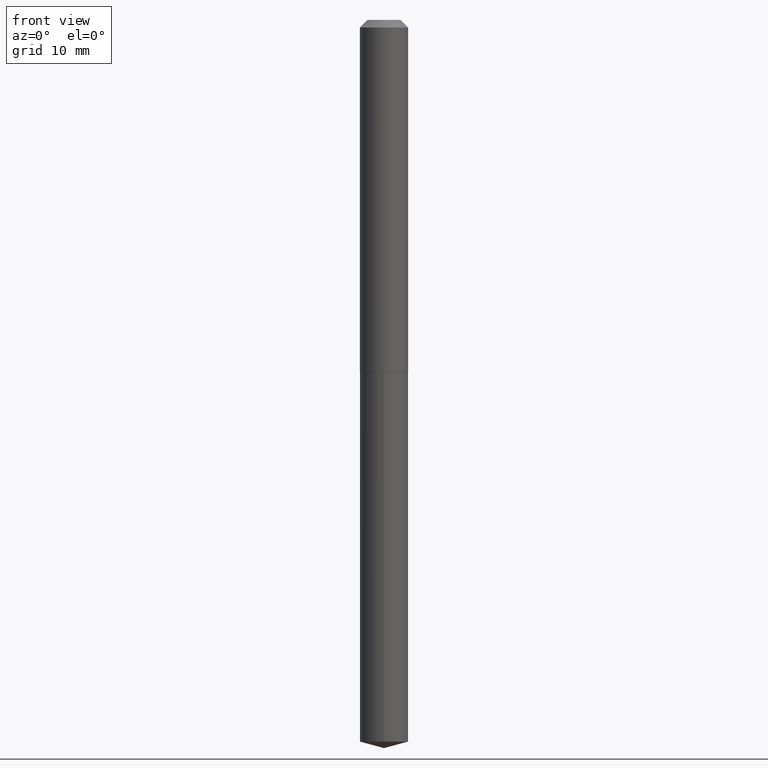
[diagram: clean part render]
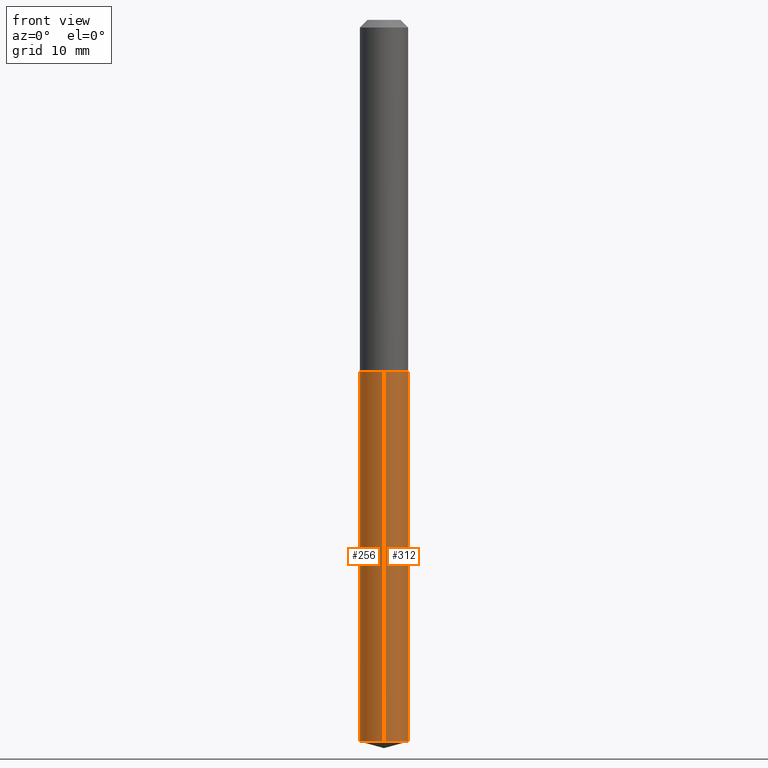
[diagram: same view with one multi-face feature highlighted, each face labeled with its STEP entity id]
A machine part, front view. The highlighted faces form ONE feature: a constant-radius fillet chain: 2 tangent blend faces with common blend radius 2.5273 mm. The faces share edges in the B-rep.
Their STEP definitions:
[1] entity #256 (Cylinder):
#1 = ORIENTED_EDGE ( 'NONE', *, *, #56, .T. ) ;
#2 = VECTOR ( 'NONE', #383, 39.37007874015748143 ) ;
#13 = CARTESIAN_POINT ( 'NONE',  ( 7.252523040957394308E-29, -1.040811562187627569E-14, -2.973339055353103610 ) ) ;
#33 = AXIS2_PLACEMENT_3D ( 'NONE', #13, #42, #377 ) ;
#42 = DIRECTION ( 'NONE',  ( -2.433211120432753705E-29, 3.509035042504704003E-15, 1.000000000000000000 ) ) ;
#44 = CARTESIAN_POINT ( 'NONE',  ( 7.069900220813351214E-16, 0.09949999999999496747, -1.449000000000000510 ) ) ;
#50 = EDGE_CURVE ( 'NONE', #183, #272, #354, .T. ) ;
#54 = DIRECTION ( 'NONE',  ( -6.982962677686266711E-15, -1.000000000000000000, 2.745575873029409572E-15 ) ) ;
#55 = CARTESIAN_POINT ( 'NONE',  ( -6.948047864297481652E-16, -0.09950000000000505662, -1.449000000000000066 ) ) ;
#56 = EDGE_CURVE ( 'NONE', #122, #89, #266, .T. ) ;
#58 = VECTOR ( 'NONE', #249, 39.37007874015748143 ) ;
#89 = VERTEX_POINT ( 'NONE', #226 ) ;
#106 = DIRECTION ( 'NONE',  ( -6.982962677686266711E-15, -1.000000000000000000, 2.745575873029409967E-15 ) ) ;
#108 = CYLINDRICAL_SURFACE ( 'NONE', #261, 0.09950000000000001898 ) ;
#112 = CARTESIAN_POINT ( 'NONE',  ( -6.948047864297482638E-16, -0.09950000000000508438, -1.449000000000000066 ) ) ;
#117 = ORIENTED_EDGE ( 'NONE', *, *, #50, .F. ) ;
#122 = VERTEX_POINT ( 'NONE', #257 ) ;
#150 = CARTESIAN_POINT ( 'NONE',  ( 7.069900220813727895E-16, 0.09949999999999495359, -1.449000000000000510 ) ) ;
#154 = EDGE_LOOP ( 'NONE', ( #297, #1, #240, #117 ) ) ;
#170 = CARTESIAN_POINT ( 'NONE',  ( 3.543484300162263808E-29, -5.059156459983719291E-15, -1.449000000000000288 ) ) ;
#171 = EDGE_CURVE ( 'NONE', #122, #183, #279, .T. ) ;
#176 = FACE_OUTER_BOUND ( 'NONE', #154, .T. ) ;
#183 = VERTEX_POINT ( 'NONE', #150 ) ;
#205 = EDGE_CURVE ( 'NONE', #89, #272, #232, .T. ) ;
#226 = CARTESIAN_POINT ( 'NONE',  ( -6.948047864297114831E-16, -0.09950000000001051059, -2.973339055353103166 ) ) ;
#232 = LINE ( 'NONE', #112, #2 ) ;
#240 = ORIENTED_EDGE ( 'NONE', *, *, #205, .T. ) ;
#249 = DIRECTION ( 'NONE',  ( -2.433211120432753425E-29, 3.509035042504704003E-15, 1.000000000000000000 ) ) ;
#255 = DIRECTION ( 'NONE',  ( -2.433211120432753705E-29, 3.509035042504704003E-15, 1.000000000000000000 ) ) ;
#256 = ADVANCED_FACE ( 'NONE', ( #176 ), #108, .T. ) ;
#257 = CARTESIAN_POINT ( 'NONE',  ( 7.069900220813727895E-16, 0.09949999999998966616, -2.973339055353104055 ) ) ;
#261 = AXIS2_PLACEMENT_3D ( 'NONE', #289, #263, #54 ) ;
#263 = DIRECTION ( 'NONE',  ( -2.433211120432753705E-29, 3.509035042504704003E-15, 1.000000000000000000 ) ) ;
#266 = CIRCLE ( 'NONE', #33, 0.09950000000000004674 ) ;
#272 = VERTEX_POINT ( 'NONE', #55 ) ;
#279 = LINE ( 'NONE', #44, #58 ) ;
#289 = CARTESIAN_POINT ( 'NONE',  ( 3.543484300162263808E-29, -5.059156459983719291E-15, -1.449000000000000288 ) ) ;
#297 = ORIENTED_EDGE ( 'NONE', *, *, #171, .F. ) ;
#307 = AXIS2_PLACEMENT_3D ( 'NONE', #170, #255, #106 ) ;
#354 = CIRCLE ( 'NONE', #307, 0.09950000000000000511 ) ;
#377 = DIRECTION ( 'NONE',  ( -6.982962677686265922E-15, -1.000000000000000000, 5.491151746058817567E-15 ) ) ;
#383 = DIRECTION ( 'NONE',  ( -2.433211120432753425E-29, 3.509035042504704003E-15, 1.000000000000000000 ) ) ;
[2] entity #312 (Cylinder):
#2 = VECTOR ( 'NONE', #383, 39.37007874015748143 ) ;
#19 = DIRECTION ( 'NONE',  ( -2.433211120432753705E-29, 3.509035042504704003E-15, 1.000000000000000000 ) ) ;
#30 = CARTESIAN_POINT ( 'NONE',  ( 3.543484300162263808E-29, -5.059156459983719291E-15, -1.449000000000000288 ) ) ;
#44 = CARTESIAN_POINT ( 'NONE',  ( 7.069900220813351214E-16, 0.09949999999999496747, -1.449000000000000510 ) ) ;
#55 = CARTESIAN_POINT ( 'NONE',  ( -6.948047864297481652E-16, -0.09950000000000505662, -1.449000000000000066 ) ) ;
#58 = VECTOR ( 'NONE', #249, 39.37007874015748143 ) ;
#83 = DIRECTION ( 'NONE',  ( -2.433211120432753705E-29, 3.509035042504704003E-15, 1.000000000000000000 ) ) ;
#89 = VERTEX_POINT ( 'NONE', #226 ) ;
#93 = ORIENTED_EDGE ( 'NONE', *, *, #205, .F. ) ;
#94 = EDGE_CURVE ( 'NONE', #89, #122, #355, .T. ) ;
#112 = CARTESIAN_POINT ( 'NONE',  ( -6.948047864297482638E-16, -0.09950000000000508438, -1.449000000000000066 ) ) ;
#122 = VERTEX_POINT ( 'NONE', #257 ) ;
#150 = CARTESIAN_POINT ( 'NONE',  ( 7.069900220813727895E-16, 0.09949999999999495359, -1.449000000000000510 ) ) ;
#171 = EDGE_CURVE ( 'NONE', #122, #183, #279, .T. ) ;
#183 = VERTEX_POINT ( 'NONE', #150 ) ;
#196 = CARTESIAN_POINT ( 'NONE',  ( 7.252523040957394308E-29, -1.040811562187627569E-14, -2.973339055353103610 ) ) ;
#197 = DIRECTION ( 'NONE',  ( -2.433211120432753705E-29, 3.509035042504704003E-15, 1.000000000000000000 ) ) ;
#198 = EDGE_CURVE ( 'NONE', #272, #183, #231, .T. ) ;
#204 = DIRECTION ( 'NONE',  ( -6.982962677686266711E-15, -1.000000000000000000, 2.745575873029409572E-15 ) ) ;
#205 = EDGE_CURVE ( 'NONE', #89, #272, #232, .T. ) ;
#218 = ORIENTED_EDGE ( 'NONE', *, *, #171, .T. ) ;
#226 = CARTESIAN_POINT ( 'NONE',  ( -6.948047864297114831E-16, -0.09950000000001051059, -2.973339055353103166 ) ) ;
#229 = CYLINDRICAL_SURFACE ( 'NONE', #371, 0.09950000000000001898 ) ;
#231 = CIRCLE ( 'NONE', #313, 0.09950000000000000511 ) ;
#232 = LINE ( 'NONE', #112, #2 ) ;
#237 = ORIENTED_EDGE ( 'NONE', *, *, #94, .T. ) ;
#247 = ORIENTED_EDGE ( 'NONE', *, *, #198, .F. ) ;
#249 = DIRECTION ( 'NONE',  ( -2.433211120432753425E-29, 3.509035042504704003E-15, 1.000000000000000000 ) ) ;
#257 = CARTESIAN_POINT ( 'NONE',  ( 7.069900220813727895E-16, 0.09949999999998966616, -2.973339055353104055 ) ) ;
#272 = VERTEX_POINT ( 'NONE', #55 ) ;
#279 = LINE ( 'NONE', #44, #58 ) ;
#295 = EDGE_LOOP ( 'NONE', ( #237, #218, #247, #93 ) ) ;
#312 = ADVANCED_FACE ( 'NONE', ( #356 ), #229, .T. ) ;
#313 = AXIS2_PLACEMENT_3D ( 'NONE', #30, #197, #353 ) ;
#353 = DIRECTION ( 'NONE',  ( -6.982962677686266711E-15, -1.000000000000000000, 2.745575873029409967E-15 ) ) ;
#355 = CIRCLE ( 'NONE', #386, 0.09950000000000004674 ) ;
#356 = FACE_OUTER_BOUND ( 'NONE', #295, .T. ) ;
#368 = DIRECTION ( 'NONE',  ( -6.982962677686265922E-15, -1.000000000000000000, 5.491151746058817567E-15 ) ) ;
#371 = AXIS2_PLACEMENT_3D ( 'NONE', #389, #83, #204 ) ;
#383 = DIRECTION ( 'NONE',  ( -2.433211120432753425E-29, 3.509035042504704003E-15, 1.000000000000000000 ) ) ;
#386 = AXIS2_PLACEMENT_3D ( 'NONE', #196, #19, #368 ) ;
#389 = CARTESIAN_POINT ( 'NONE',  ( 3.543484300162263808E-29, -5.059156459983719291E-15, -1.449000000000000288 ) ) ;